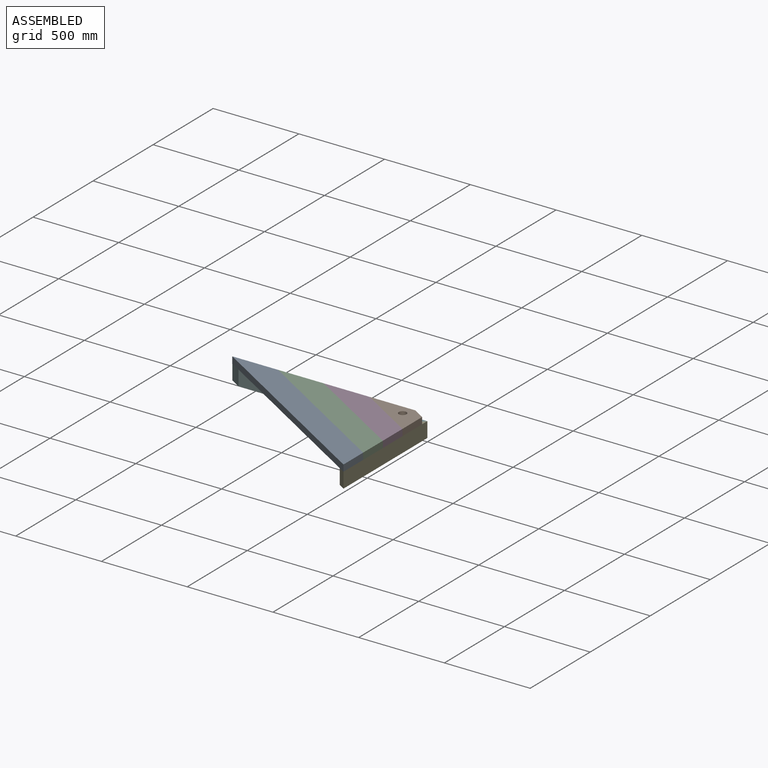
[diagram: assembled view]
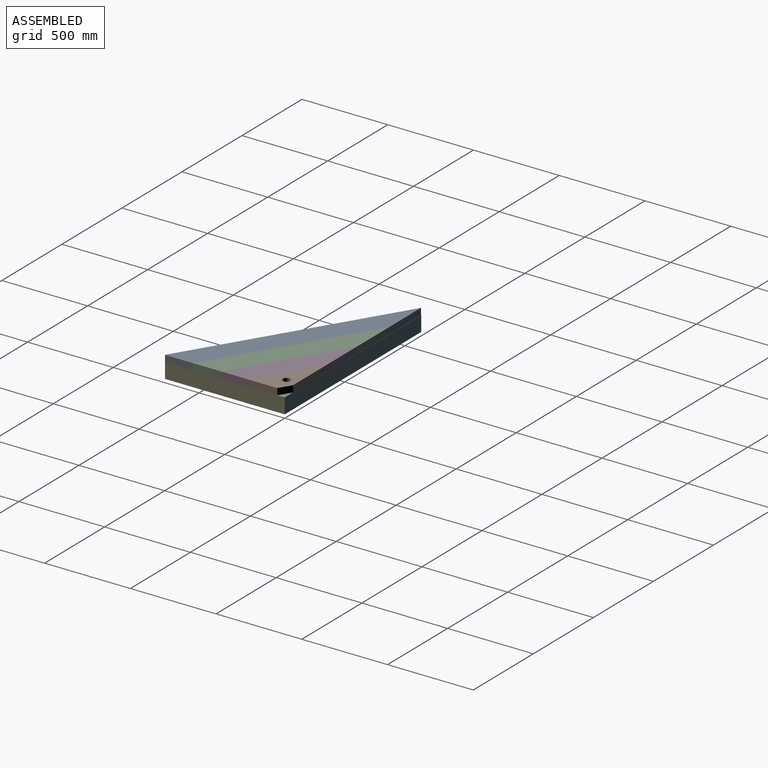
[diagram: assembled view, second angle]
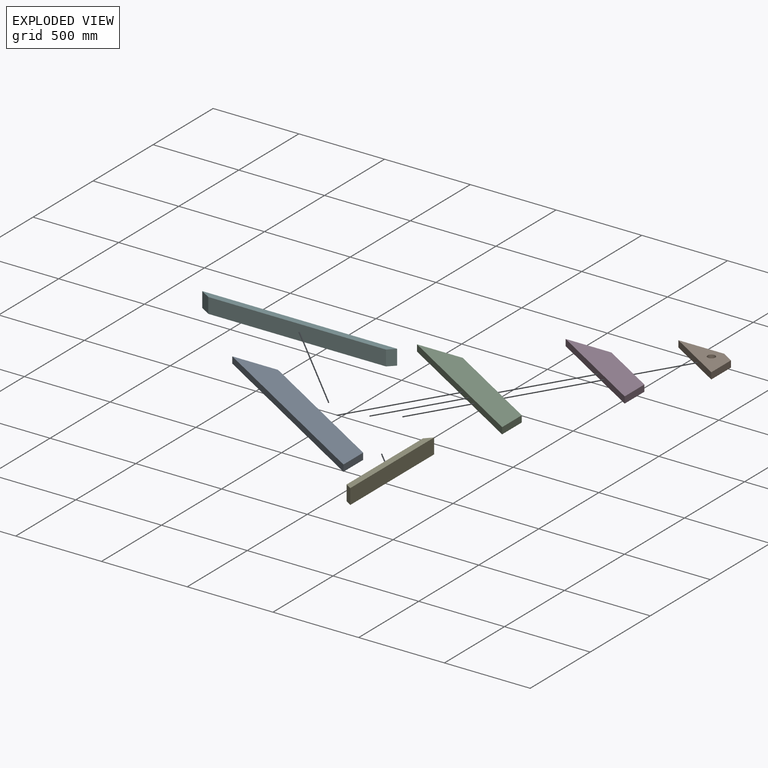
[diagram: exploded view]
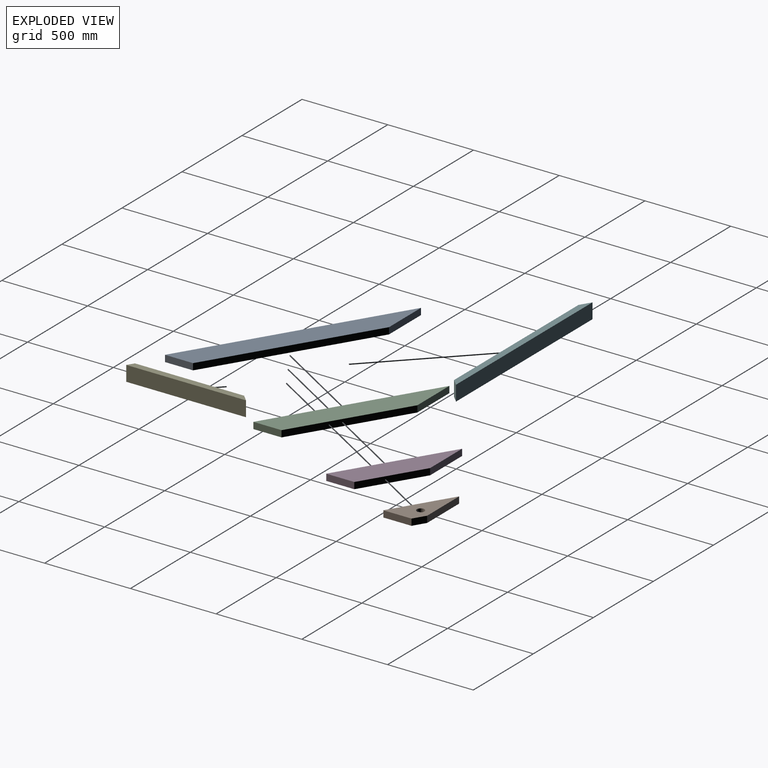
[diagram: exploded view, second angle]
ASSEMBLY  parts=6 mates=5
PART A: 6 faces, bbox 1333.5x139.7x38.1 mm
  f0: plane 139.7x85.7mm, normal (0.85,0.52,0), area 6244.4mm2, adj f1,f3,f4,f5
  f1: plane 1020.61x38.1mm, normal (0,1,0), area 38885.3mm2, adj f0,f2,f4,f5
  f2: plane 227.18x139.7mm, normal (-0.52,0.85,0), area 10161.3mm2, adj f1,f3,f4,f5
  f3: plane 1333.5x38.1mm, normal (0,-1,0), area 50806.3mm2, adj f0,f2,f4,f5
  f4: plane 1333.5x139.7mm, normal (0,0,1), area 164434.7mm2, adj f0,f1,f2,f3
  f5: plane 1333.5x139.7mm, normal (0,0,-1), area 164434.7mm2, adj f0,f1,f2,f3
PART B: 7 faces, bbox 394.9x139.7x38.1 mm
  f0: plane 139.7x85.7mm, normal (0.85,0.52,0), area 6244.4mm2, adj f1,f4,f5,f6
  f1: plane 81.98x38.1mm, normal (0,1,0), area 3123.4mm2, adj f0,f2,f5,f6
  f2: plane 227.18x139.7mm, normal (-0.52,0.85,0), area 10161.3mm2, adj f1,f4,f5,f6
  f3: cylinder r=22.23mm len=44.45mm, axis (0,0,-1), area 5320.4mm2, adj f5,f6
  f4: plane 394.87x38.1mm, normal (0,-1,0), area 15044.5mm2, adj f0,f2,f5,f6
  f5: plane 394.87x139.7mm, normal (0,0,1), area 31756.1mm2, adj f0,f1,f2,f3,f4
  f6: plane 394.87x139.7mm, normal (0,0,-1), area 31756.1mm2, adj f0,f1,f2,f3,f4
PART C: 6 faces, bbox 1020.6x139.7x38.1 mm
  f0: plane 139.7x85.7mm, normal (0.85,0.52,0), area 6244.4mm2, adj f1,f3,f4,f5
  f1: plane 707.73x38.1mm, normal (0,1,0), area 26964.7mm2, adj f0,f2,f4,f5
  f2: plane 227.18x139.7mm, normal (-0.52,0.85,0), area 10161.3mm2, adj f1,f3,f4,f5
  f3: plane 1020.62x38.1mm, normal (0,-1,0), area 38885.7mm2, adj f0,f2,f4,f5
  f4: plane 1020.62x139.7mm, normal (0,0,1), area 120725.7mm2, adj f0,f1,f2,f3
  f5: plane 1020.62x139.7mm, normal (0,0,-1), area 120725.7mm2, adj f0,f1,f2,f3
PART D: 6 faces, bbox 707.7x139.7x38.1 mm
  f0: plane 139.7x85.7mm, normal (0.85,0.52,0), area 6244.4mm2, adj f1,f3,f4,f5
  f1: plane 394.86x38.1mm, normal (0,1,0), area 15044.1mm2, adj f0,f2,f4,f5
  f2: plane 227.18x139.7mm, normal (-0.52,0.85,0), area 10161.3mm2, adj f1,f3,f4,f5
  f3: plane 707.75x38.1mm, normal (0,-1,0), area 26965.1mm2, adj f0,f2,f4,f5
  f4: plane 707.75x139.7mm, normal (0,0,1), area 77016.8mm2, adj f0,f1,f2,f3
  f5: plane 707.75x139.7mm, normal (0,0,-1), area 77016.8mm2, adj f0,f1,f2,f3
PART E: 6 faces, bbox 698.5x38.1x88.9 mm
  f0: plane 88.9x38.1mm, normal (0.71,0.71,0), area 4790.1mm2, adj f1,f2,f3,f4
  f1: plane 636.59x88.9mm, normal (0,1,0), area 56593.1mm2, adj f0,f3,f4,f5
  f2: plane 698.5x88.9mm, normal (0,-1,0), area 62096.6mm2, adj f0,f3,f4,f5
  f3: plane 698.5x38.1mm, normal (0,0,1), area 25433.5mm2, adj f0,f1,f2,f5
  f4: plane 698.5x38.1mm, normal (0,0,-1), area 25433.5mm2, adj f0,f1,f2,f5
  f5: plane 88.9x38.1mm, normal (-0.85,0.53,0), area 3994mm2, adj f1,f2,f3,f4
PART F: 6 faces, bbox 1136.7x38.1x88.9 mm
  f0: plane 88.9x38.1mm, normal (0.71,0.71,0), area 4790.1mm2, adj f1,f2,f3,f4
  f1: plane 1036.38x88.9mm, normal (0,1,0), area 92133.9mm2, adj f0,f3,f4,f5
  f2: plane 1136.65x88.9mm, normal (0,-1,0), area 101048.2mm2, adj f0,f3,f4,f5
  f3: plane 1136.65x38.1mm, normal (0,0,1), area 41396.2mm2, adj f0,f1,f2,f5
  f4: plane 1136.65x38.1mm, normal (0,0,-1), area 41396.2mm2, adj f0,f1,f2,f5
  f5: plane 88.9x62.17mm, normal (-0.52,0.85,0), area 6482.5mm2, adj f1,f2,f3,f4
PLACE A rot(axis=(0,0,-1),31.5deg) t=(-568.32,-349.84,0)mm
PLACE B rot(axis=(0,0,-1),31.5deg) t=(-168.29,-103.58,0)mm
PLACE C rot(axis=(0,0,-1),31.5deg) t=(-301.63,-185.67,0)mm
PLACE D rot(axis=(0,0,-1),31.5deg) t=(-301.63,-185.66,0)mm
PLACE E rot(axis=(0,0,1),90deg) t=(-38.1,-368.3,-88.9)mm
PLACE F rot(axis=(1,0,0),180deg) t=(-587.38,-38.1,0)mm
MATE fastened C.f1 <-> D.f3  axis (0.52,0.85,0) through (0,-370.71,38.1)mm
MATE fastened F.f0 <-> E.f0  axis (0.71,-0.71,0) through (-19.05,-19.05,-44.45)mm
MATE fastened D.f1 <-> B.f4  axis (0.52,0.85,0) through (0,-206.82,38.1)mm
MATE fastened A.f0 <-> E.f2  axis (1,0,0) through (0,-698.5,0)mm
MATE fastened A.f1 <-> C.f3  axis (0.52,0.85,0) through (0,-534.61,38.1)mm
